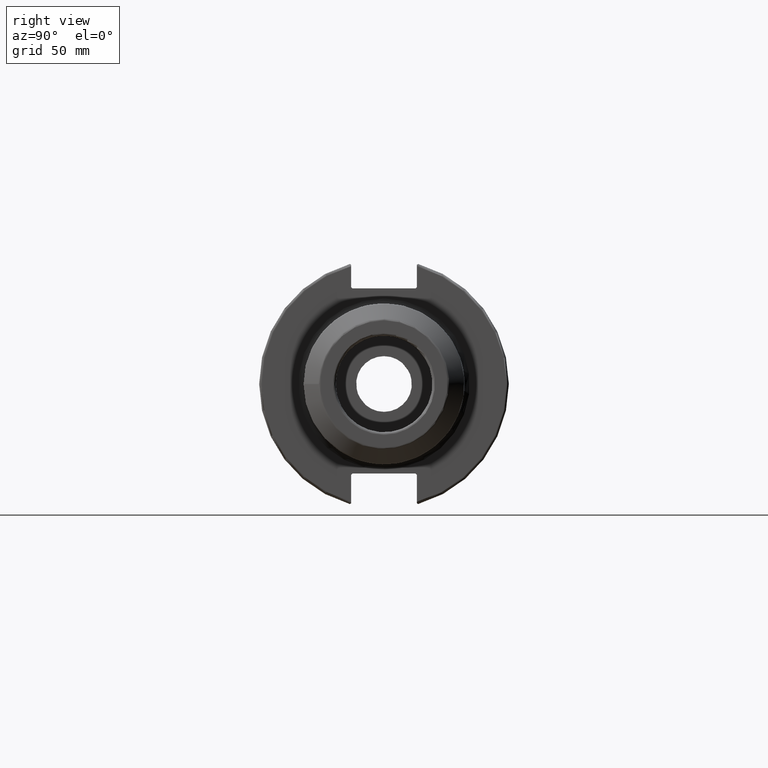
[diagram: clean part render]
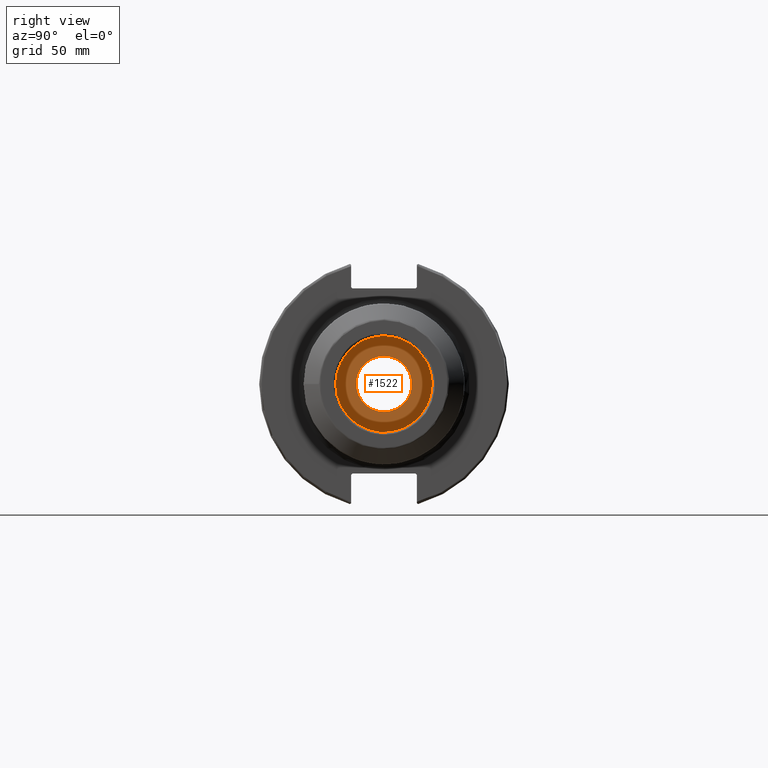
[diagram: same view with one face highlighted and labeled with its STEP entity id]
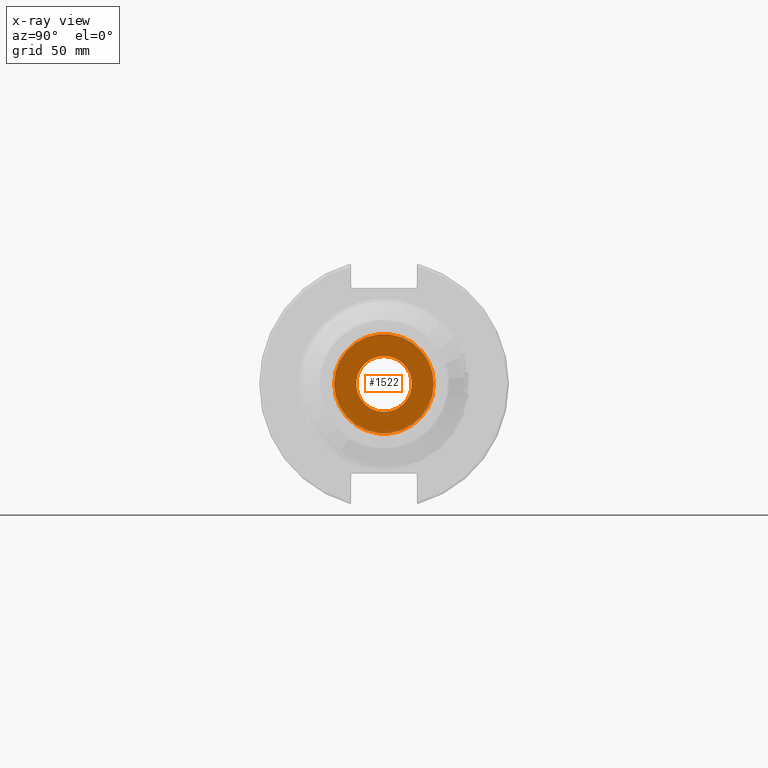
[diagram: x-ray of the same camera — body ghosted, the highlighted face saturated]
A machine part, right view. The second image highlights one B-rep face of the part: STEP entity #1522.
The next image is the same camera in x-ray: the body ghosted, the highlighted face saturated — about 9% of this face is hidden behind the body in this view.
In plain terms, the highlighted planar face has unit normal (1, 0, 0).
Its self-contained STEP definition (entity closure, byte-faithful):
#36=PLANE('',#1658);
#79=FACE_BOUND('',#244,.T.);
#147=FACE_OUTER_BOUND('',#243,.T.);
#243=EDGE_LOOP('',(#1122));
#244=EDGE_LOOP('',(#1123));
#352=CIRCLE('',#1653,10.9855);
#354=CIRCLE('',#1657,19.65);
#673=VERTEX_POINT('',#2446);
#679=VERTEX_POINT('',#2529);
#843=EDGE_CURVE('',#673,#673,#352,.T.);
#850=EDGE_CURVE('',#679,#679,#354,.T.);
#1122=ORIENTED_EDGE('',*,*,#850,.T.);
#1123=ORIENTED_EDGE('',*,*,#843,.T.);
#1522=ADVANCED_FACE('',(#147,#79),#36,.T.);
#1653=AXIS2_PLACEMENT_3D('',#2448,#1876,#1877);
#1657=AXIS2_PLACEMENT_3D('',#2531,#1885,#1886);
#1658=AXIS2_PLACEMENT_3D('',#2532,#1887,#1888);
#1876=DIRECTION('center_axis',(-1.,0.,0.));
#1877=DIRECTION('ref_axis',(0.,0.,1.));
#1885=DIRECTION('center_axis',(1.,0.,0.));
#1886=DIRECTION('ref_axis',(0.,0.,-1.));
#1887=DIRECTION('center_axis',(1.,0.,0.));
#1888=DIRECTION('ref_axis',(0.,0.,-1.));
#2446=CARTESIAN_POINT('',(51.4,-1.34533574120333E-15,-10.9855));
#2448=CARTESIAN_POINT('Origin',(51.4,0.,0.));
#2529=CARTESIAN_POINT('',(51.4,-19.65,-2.40643096032455E-15));
#2531=CARTESIAN_POINT('Origin',(51.4,0.,0.));
#2532=CARTESIAN_POINT('Origin',(51.4,-7.7956249819801E-15,0.));